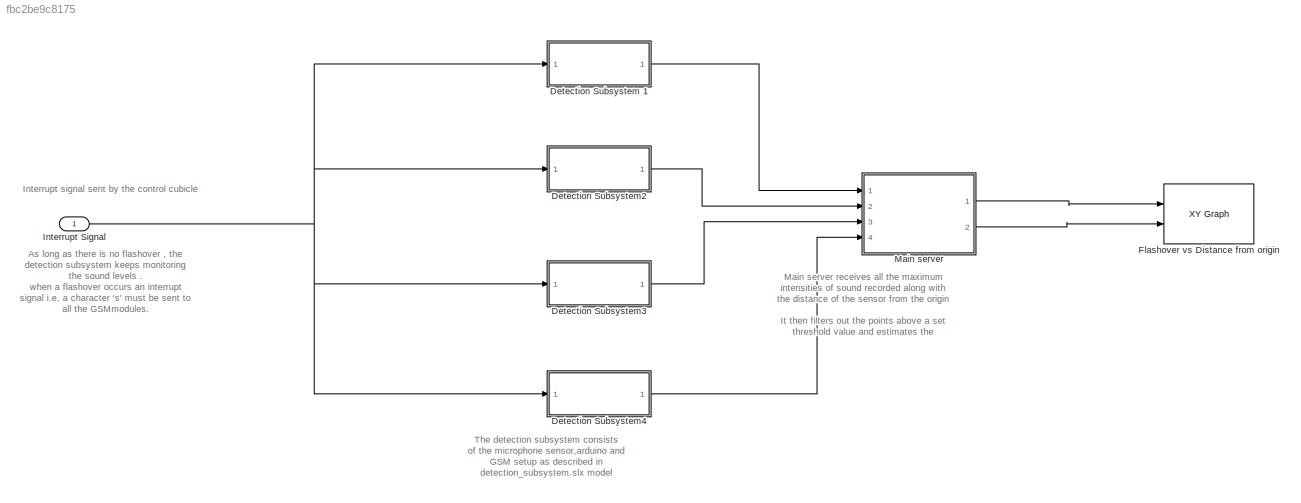
MODEL slx_fbc2be9c8175
KIND model
CONFIG AbsTol = auto
CONFIG FixedStep = auto
CONFIG MaxStep = auto
CONFIG MinStep = auto
CONFIG RelTol = 1e-3
CONFIG SampleTimeConstraint = Unconstrained
CONFIG Solver = VariableStepAuto
CONFIG SolverMode = Auto
CONFIG SolverName = VariableStepAuto
CONFIG StartTime = 0.0
CONFIG StopTime = 10.0
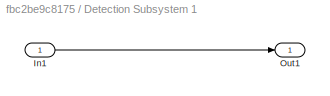
BLOCK [SubSystem] Detection Subsystem 1
  Ports = [1, 1]
  RequestExecContextInheritance = off
  Variant = off
BLOCK [Inport] Detection Subsystem 1/In1
  IconDisplay = Port number
BLOCK [Outport] Detection Subsystem 1/Out1
  IconDisplay = Port number
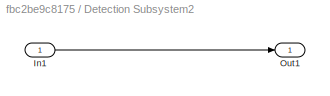
BLOCK [SubSystem] Detection Subsystem2
  Ports = [1, 1]
  RequestExecContextInheritance = off
  Variant = off
BLOCK [Inport] Detection Subsystem2/In1
  IconDisplay = Port number
BLOCK [Outport] Detection Subsystem2/Out1
  IconDisplay = Port number
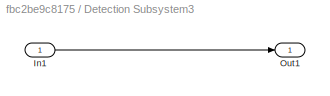
BLOCK [SubSystem] Detection Subsystem3
  Ports = [1, 1]
  RequestExecContextInheritance = off
  Variant = off
BLOCK [Inport] Detection Subsystem3/In1
  IconDisplay = Port number
BLOCK [Outport] Detection Subsystem3/Out1
  IconDisplay = Port number
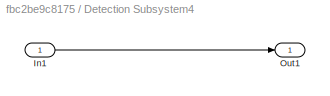
BLOCK [SubSystem] Detection Subsystem4
  Ports = [1, 1]
  RequestExecContextInheritance = off
  Variant = off
BLOCK [Inport] Detection Subsystem4/In1
  IconDisplay = Port number
BLOCK [Outport] Detection Subsystem4/Out1
  IconDisplay = Port number
BLOCK [Reference] Flashover vs Distance from origin  REF=simulink/Sinks/XY Graph
  Ports = [2]
  SourceBlock = simulink/Sinks/XY Graph
  SourceType = XY scope.
BLOCK [Inport] Interrupt Signal 
  IconDisplay = Port number
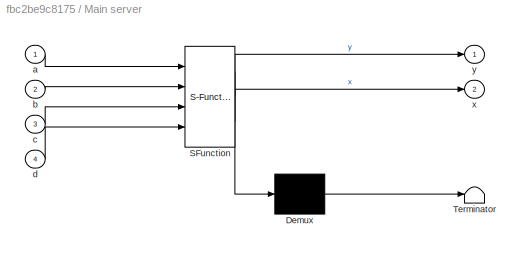
BLOCK [SubSystem] Main server
  ErrorFcn = Stateflow.Translate.translate
  PermitHierarchicalResolution = ExplicitOnly
  Ports = [4, 2]
  RequestExecContextInheritance = off
  SFBlockType = MATLAB Function
  TreatAsAtomicUnit = on
  Variant = off
BLOCK [Demux] Main server/ Demux 
  Outputs = 1
  Ports = [1, 1]
BLOCK [S-Function] Main server/ SFunction 
  EnableBusSupport = off
  FunctionName = sf_sfun
  PortCounts = [4 3]
  Ports = [4, 3]
  SFunctionDeploymentMode = off
  Tag = Stateflow S-Function Main_system 2
BLOCK [Terminator] Main server/ Terminator 
BLOCK [Inport] Main server/a
  IconDisplay = Port number
BLOCK [Inport] Main server/b
  IconDisplay = Port number
  Port = 2
BLOCK [Inport] Main server/c
  IconDisplay = Port number
  Port = 3
BLOCK [Inport] Main server/d
  IconDisplay = Port number
  Port = 4
BLOCK [Outport] Main server/x
  IconDisplay = Port number
  Port = 2
BLOCK [Outport] Main server/y
  IconDisplay = Port number
ANNOTATION (root): Interrupt signal sent by the control cubicle
ANNOTATION (root): As long as there is no flashover , the detection subsystem keeps monitoring the sound levels . when a flashover occurs an interrupt signal i.e, a character 's' must be sent to all the GSMmodules. this will stop the monitoring activity and the arduino will send the latest sampled data to the web server which will calculate the flashover point.
ANNOTATION (root): Main server receives all the maximum intensities of sound recorded along with the distance of the sensor from the origin It then filters out the points above a set threshold value and estimates the flashover point .
ANNOTATION (root): The detection subsystem consists of the microphone sensor,arduino and GSM setup as described in detection_subsystem.slx model
LINE Detection Subsystem 1/In1:1 -> Detection Subsystem 1/Out1:1
LINE Detection Subsystem 1:1 -> Main server:1
LINE Detection Subsystem2/In1:1 -> Detection Subsystem2/Out1:1
LINE Detection Subsystem2:1 -> Main server:2
LINE Detection Subsystem3/In1:1 -> Detection Subsystem3/Out1:1
LINE Detection Subsystem3:1 -> Main server:3
LINE Detection Subsystem4/In1:1 -> Detection Subsystem4/Out1:1
LINE Detection Subsystem4:1 -> Main server:4
NET Interrupt Signal :1 -> Detection Subsystem 1:1, Detection Subsystem2:1, Detection Subsystem3:1, Detection Subsystem4:1
LINE Main server:1 -> Flashover vs Distance from origin:1
LINE Main server:2 -> Flashover vs Distance from origin:2
note: NET lines group one-source signal fan-out (src -> all destinations, sorted); 1:1 wires keep LINE
CHART Main server states=1 transitions=1
  STATE_LABEL 'eML_blk_kernel()'
  STATE_LABEL 'SCRIPT:\nfunction [y,x] = fcn(a,b,c,d)\n%#codegen\n\ny = u;'
